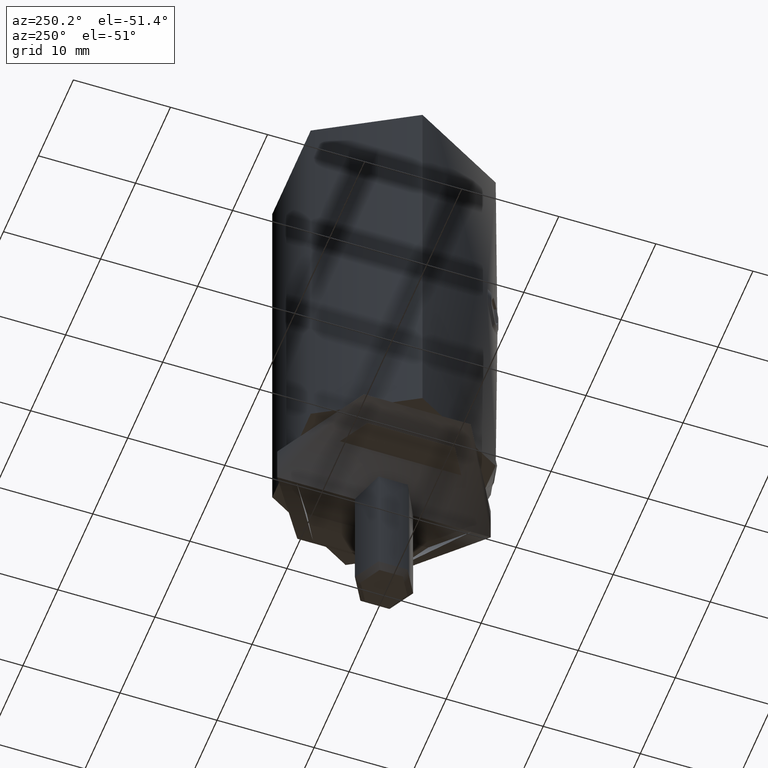
[diagram: clean part render]
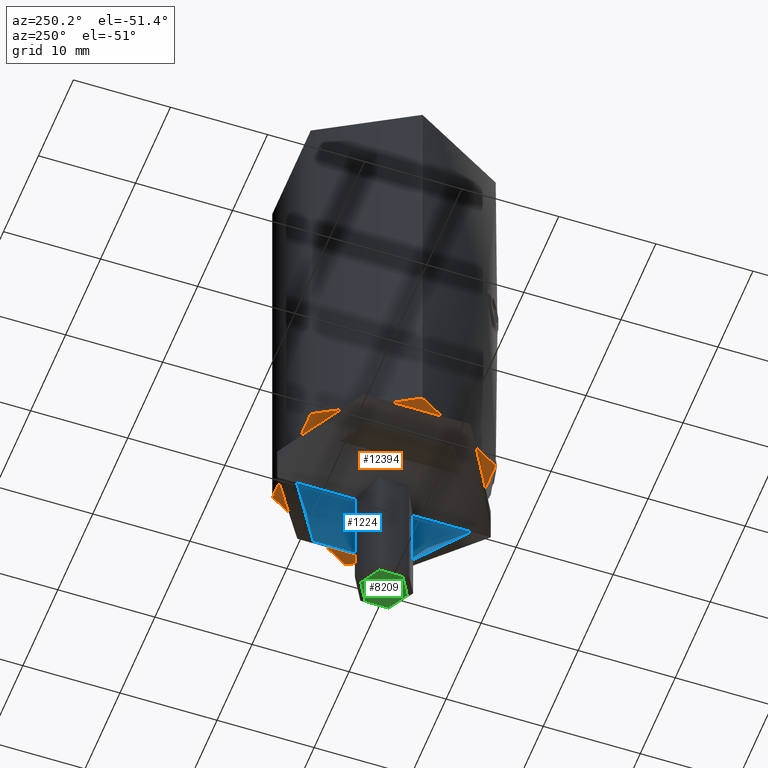
[diagram: same view with three faces highlighted in distinct colors, each labeled with its STEP entity id]
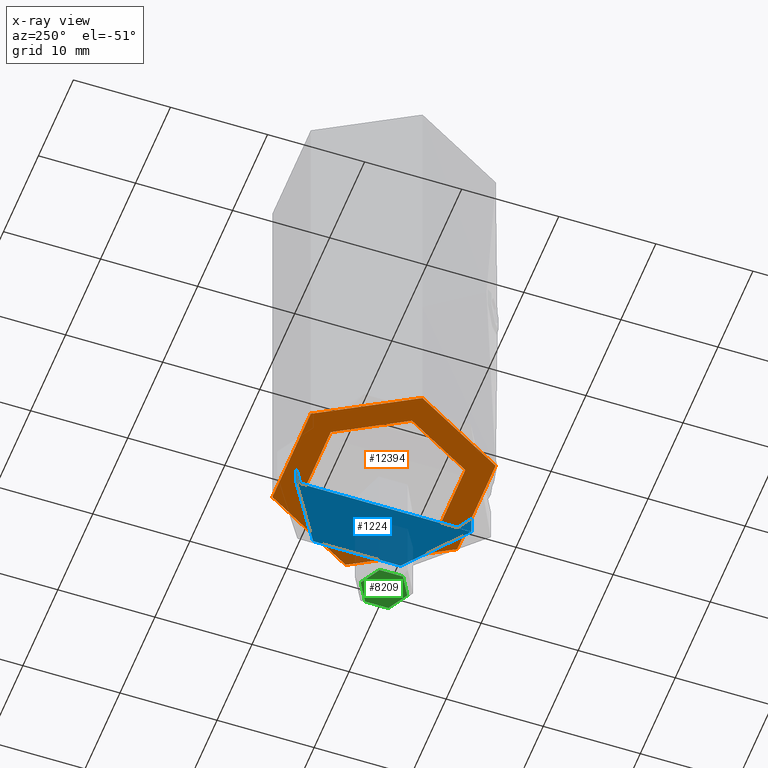
[diagram: x-ray of the same camera — body ghosted, the three highlighted faces saturated]
A machine part, auxiliary view with three faces highlighted in distinct colors.
The next image is the same camera in x-ray (body ghosted, the three faces saturated) — at least one of them is partly hidden behind the body in this view.
Their STEP definitions:

[orange] entity #12394 — the highlighted planar face has unit normal (0, 0, -1).
#185 = CARTESIAN_POINT ( 'NONE',  ( 0.000000000000000000, 0.000000000000000000, 0.000000000000000000 ) ) ;
#583 = AXIS2_PLACEMENT_3D ( 'NONE', #185, #18202, #8185 ) ;
#852 = CARTESIAN_POINT ( 'NONE',  ( 11.00000000000000000, 0.000000000000000000, 0.000000000000000000 ) ) ;
#1027 = EDGE_CURVE ( 'NONE', #9786, #12698, #20899, .T. ) ;
#1070 = DIRECTION ( 'NONE',  ( 0.000000000000000000, 0.000000000000000000, -1.000000000000000000 ) ) ;
#2545 = CARTESIAN_POINT ( 'NONE',  ( 0.000000000000000000, 0.000000000000000000, 0.000000000000000000 ) ) ;
#2551 = AXIS2_PLACEMENT_3D ( 'NONE', #2545, #16592, #11030 ) ;
#2902 = FACE_BOUND ( 'NONE', #18020, .T. ) ;
#3158 = FACE_OUTER_BOUND ( 'NONE', #12858, .T. ) ;
#3188 = VERTEX_POINT ( 'NONE', #10173 ) ;
#3858 = AXIS2_PLACEMENT_3D ( 'NONE', #18491, #1070, #13113 ) ;
#5896 = CARTESIAN_POINT ( 'NONE',  ( 0.000000000000000000, 0.000000000000000000, 0.000000000000000000 ) ) ;
#6557 = EDGE_CURVE ( 'NONE', #3188, #7494, #15906, .T. ) ;
#7494 = VERTEX_POINT ( 'NONE', #13508 ) ;
#7637 = DIRECTION ( 'NONE',  ( -0.000000000000000000, -0.000000000000000000, 1.000000000000000000 ) ) ;
#8185 = DIRECTION ( 'NONE',  ( 1.000000000000000000, 0.000000000000000000, 0.000000000000000000 ) ) ;
#9169 = ORIENTED_EDGE ( 'NONE', *, *, #6557, .T. ) ;
#9786 = VERTEX_POINT ( 'NONE', #852 ) ;
#9919 = ORIENTED_EDGE ( 'NONE', *, *, #12988, .T. ) ;
#10173 = CARTESIAN_POINT ( 'NONE',  ( 8.000000000000000000, 9.797174393178825657E-16, 0.000000000000000000 ) ) ;
#10232 = CIRCLE ( 'NONE', #2551, 11.00000000000000000 ) ;
#11030 = DIRECTION ( 'NONE',  ( 1.000000000000000000, 0.000000000000000000, 0.000000000000000000 ) ) ;
#11064 = CARTESIAN_POINT ( 'NONE',  ( 0.000000000000000000, 0.000000000000000000, 0.000000000000000000 ) ) ;
#11140 = DIRECTION ( 'NONE',  ( -0.000000000000000000, -0.000000000000000000, 1.000000000000000000 ) ) ;
#11363 = PLANE ( 'NONE',  #3858 ) ;
#12394 = ADVANCED_FACE ( 'NONE', ( #2902, #3158 ), #11363, .T. ) ;
#12698 = VERTEX_POINT ( 'NONE', #16909 ) ;
#12858 = EDGE_LOOP ( 'NONE', ( #16073, #21162 ) ) ;
#12988 = EDGE_CURVE ( 'NONE', #7494, #3188, #21945, .T. ) ;
#13113 = DIRECTION ( 'NONE',  ( -1.000000000000000000, 0.000000000000000000, -0.000000000000000000 ) ) ;
#13508 = CARTESIAN_POINT ( 'NONE',  ( -8.000000000000000000, 0.000000000000000000, 0.000000000000000000 ) ) ;
#13713 = AXIS2_PLACEMENT_3D ( 'NONE', #5896, #7637, #18160 ) ;
#14317 = AXIS2_PLACEMENT_3D ( 'NONE', #11064, #11140, #18351 ) ;
#14396 = EDGE_CURVE ( 'NONE', #12698, #9786, #10232, .T. ) ;
#15906 = CIRCLE ( 'NONE', #14317, 8.000000000000000000 ) ;
#16073 = ORIENTED_EDGE ( 'NONE', *, *, #1027, .F. ) ;
#16592 = DIRECTION ( 'NONE',  ( -0.000000000000000000, -0.000000000000000000, 1.000000000000000000 ) ) ;
#16909 = CARTESIAN_POINT ( 'NONE',  ( -10.99999999999999822, 1.347111479062088405E-15, 0.000000000000000000 ) ) ;
#18020 = EDGE_LOOP ( 'NONE', ( #9919, #9169 ) ) ;
#18160 = DIRECTION ( 'NONE',  ( -1.000000000000000000, 0.000000000000000000, 0.000000000000000000 ) ) ;
#18202 = DIRECTION ( 'NONE',  ( -0.000000000000000000, -0.000000000000000000, 1.000000000000000000 ) ) ;
#18351 = DIRECTION ( 'NONE',  ( -1.000000000000000000, 0.000000000000000000, 0.000000000000000000 ) ) ;
#18491 = CARTESIAN_POINT ( 'NONE',  ( 0.000000000000000000, 9.629649721936179265E-32, 0.000000000000000000 ) ) ;
#20899 = CIRCLE ( 'NONE', #583, 11.00000000000000000 ) ;
#21162 = ORIENTED_EDGE ( 'NONE', *, *, #14396, .F. ) ;
#21945 = CIRCLE ( 'NONE', #13713, 8.000000000000000000 ) ;

[blue] entity #1224 — the highlighted cylindrical surface (partial cylindrical patch) has radius 9 mm, axis along (0, 0, -1).
#340 = VERTEX_POINT ( 'NONE', #20653 ) ;
#727 = CARTESIAN_POINT ( 'NONE',  ( 1.102182119232617714E-15, -9.000000000000000000, 1.999999999999997113 ) ) ;
#780 = VECTOR ( 'NONE', #18650, 1000.000000000000000 ) ;
#1224 = ADVANCED_FACE ( 'NONE', ( #4260 ), #2926, .F. ) ;
#1652 = CARTESIAN_POINT ( 'NONE',  ( 5.945509795412032616, -6.762829383680998951, -0.8494344560948389189 ) ) ;
#1794 = CARTESIAN_POINT ( 'NONE',  ( 2.923398892352812695, 8.532671750191315851, -0.1951843288773500440 ) ) ;
#1867 = CARTESIAN_POINT ( 'NONE',  ( 9.000187751502096489, 0.5905009705526768071, -2.005297072345209042 ) ) ;
#2926 = CYLINDRICAL_SURFACE ( 'NONE', #18693, 9.000000000000000000 ) ;
#3242 = VERTEX_POINT ( 'NONE', #10552 ) ;
#3303 = CARTESIAN_POINT ( 'NONE',  ( 8.704730878304367536, -2.362008123287461903, -1.869084275814926643 ) ) ;
#3379 = CARTESIAN_POINT ( 'NONE',  ( 6.161153869097453217, 6.567007868193577735, -0.9138700709468956518 ) ) ;
#3451 = CARTESIAN_POINT ( 'NONE',  ( 8.532378343486360706, -2.922873668129471803, -1.791268359766140739 ) ) ;
#3512 = CARTESIAN_POINT ( 'NONE',  ( 1.491460967790994463, 8.880471131629562365, -0.05053315862707704470 ) ) ;
#3873 = EDGE_CURVE ( 'NONE', #340, #8956, #7770, .T. ) ;
#4055 = EDGE_CURVE ( 'NONE', #10605, #340, #19736, .T. ) ;
#4260 = FACE_OUTER_BOUND ( 'NONE', #10072, .T. ) ;
#4990 = CARTESIAN_POINT ( 'NONE',  ( 7.150489299978476154, -5.496221675087341829, -1.239282207627341981 ) ) ;
#5061 = CARTESIAN_POINT ( 'NONE',  ( 6.780744227032809768, 5.946691944771037797, -1.108980968700565395 ) ) ;
#5296 = CARTESIAN_POINT ( 'NONE',  ( 0.3009189647580838844, 9.000000000000003553, 6.939105662144041953E-15 ) ) ;
#6746 = CARTESIAN_POINT ( 'NONE',  ( 4.019336509877204477, 8.074508177015530919, -0.3770925065201941040 ) ) ;
#6817 = CARTESIAN_POINT ( 'NONE',  ( 4.528699389792132379, -7.783145565688806222, -0.4876673288471303769 ) ) ;
#6898 = CARTESIAN_POINT ( 'NONE',  ( 5.495492606631186661, -7.133337858995711045, -0.7233263029714135373 ) ) ;
#6978 = CARTESIAN_POINT ( 'NONE',  ( 7.636236501007309663, -4.772041448204880965, -1.422289563636395027 ) ) ;
#7033 = LINE ( 'NONE', #20226, #780 ) ;
#7047 = CARTESIAN_POINT ( 'NONE',  ( 8.532837768163393122, 2.921585112813853247, -1.791469826741916238 ) ) ;
#7770 = LINE ( 'NONE', #727, #14347 ) ;
#8479 = CARTESIAN_POINT ( 'NONE',  ( 8.066124459004573310, -4.003048471266071218, -1.593871881070151098 ) ) ;
#8520 = DIRECTION ( 'NONE',  ( 0.000000000000000000, 1.000000000000000000, 1.445602896647339163E-16 ) ) ;
#8557 = CARTESIAN_POINT ( 'NONE',  ( 0.6030836316957842724, 8.984747230574685162, -0.006488074780198420551 ) ) ;
#8709 = CARTESIAN_POINT ( 'NONE',  ( 4.535962555106800131, 7.795054722870341735, -0.4849895838474957976 ) ) ;
#8788 = CARTESIAN_POINT ( 'NONE',  ( 8.193363873119134055, -3.735633294600278820, -1.646896040208383427 ) ) ;
#8956 = VERTEX_POINT ( 'NONE', #19728 ) ;
#9915 = EDGE_CURVE ( 'NONE', #10605, #3242, #7033, .T. ) ;
#10072 = EDGE_LOOP ( 'NONE', ( #14459, #19280, #20928, #12326 ) ) ;
#10416 = CARTESIAN_POINT ( 'NONE',  ( 1.102158473109589528E-15, -9.000000000000000000, -1.861935857233098374E-15 ) ) ;
#10491 = CARTESIAN_POINT ( 'NONE',  ( 7.798681730541693113, 4.529955176446842202, -1.483482858883815370 ) ) ;
#10552 = CARTESIAN_POINT ( 'NONE',  ( -2.400543471972580931E-16, 9.000000000000000000, 0.000000000000000000 ) ) ;
#10563 = CARTESIAN_POINT ( 'NONE',  ( 7.787120209274806193, -4.521893375319822717, -1.481395017640133149 ) ) ;
#10605 = VERTEX_POINT ( 'NONE', #15515 ) ;
#12031 = CARTESIAN_POINT ( 'NONE',  ( 6.163233675632003639, -6.565061745348238276, -0.9145015165310408367 ) ) ;
#12085 = DIRECTION ( 'NONE',  ( 0.000000000000000000, 1.000000000000000000, 1.445602896647339163E-16 ) ) ;
#12109 = CARTESIAN_POINT ( 'NONE',  ( 1.486471490104403825, -8.881374637244256576, -0.05015444881014049366 ) ) ;
#12188 = CARTESIAN_POINT ( 'NONE',  ( 8.706415660134123158, 2.357563003050728856, -1.869838397457706858 ) ) ;
#12257 = CARTESIAN_POINT ( 'NONE',  ( 5.259692949055500222, 7.308904753116186370, -0.6613222603714047354 ) ) ;
#12326 = ORIENTED_EDGE ( 'NONE', *, *, #12732, .F. ) ;
#12330 = CARTESIAN_POINT ( 'NONE',  ( 0.5933654931180778469, -8.985391735092926879, -0.006214453234868509181 ) ) ;
#12732 = EDGE_CURVE ( 'NONE', #8956, #3242, #19237, .T. ) ;
#12923 = DIRECTION ( 'NONE',  ( -0.000000000000000000, 1.224646799147353700E-16, -1.000000000000000000 ) ) ;
#13800 = CARTESIAN_POINT ( 'NONE',  ( 6.782893369670293993, -5.944265957912704401, -1.109705084575135059 ) ) ;
#13876 = CARTESIAN_POINT ( 'NONE',  ( 5.262191614882391733, -7.307129957256241148, -0.6619565563388757345 ) ) ;
#13949 = CARTESIAN_POINT ( 'NONE',  ( 3.742138319472860353, -8.190460172740545275, -0.3310585601990093663 ) ) ;
#14029 = CARTESIAN_POINT ( 'NONE',  ( 0.2964334490521093879, -9.000000000000000000, -3.047059855589466335E-15 ) ) ;
#14347 = VECTOR ( 'NONE', #12923, 1000.000000000000000 ) ;
#14459 = ORIENTED_EDGE ( 'NONE', *, *, #3873, .F. ) ;
#15515 = CARTESIAN_POINT ( 'NONE',  ( 0.000000000000000000, 9.000000000000000000, 1.999999999999999556 ) ) ;
#15523 = CARTESIAN_POINT ( 'NONE',  ( 8.999905445151094696, -0.2995324990175534663, -2.005164705339575804 ) ) ;
#15601 = CARTESIAN_POINT ( 'NONE',  ( 5.492841792478553309, 7.135380700782325114, -0.7226140274287836673 ) ) ;
#15681 = CARTESIAN_POINT ( 'NONE',  ( 8.985179175337009383, -0.5968560665887953087, -1.998238770381804086 ) ) ;
#15751 = CARTESIAN_POINT ( 'NONE',  ( 7.149034228485851017, 5.498294302312308979, -1.238742662092881197 ) ) ;
#17271 = CARTESIAN_POINT ( 'NONE',  ( 8.942269996938883025, 1.181348493133572708, -1.977808956071740232 ) ) ;
#17347 = CARTESIAN_POINT ( 'NONE',  ( 1.188250110291134698, -8.926220304075664913, -0.03123314677761045502 ) ) ;
#17427 = CARTESIAN_POINT ( 'NONE',  ( 2.924552147243136169, -8.532053850704444997, -0.1954229079065455954 ) ) ;
#17491 = CARTESIAN_POINT ( 'NONE',  ( -2.400543471972580931E-16, 9.000000000000000000, 0.000000000000000000 ) ) ;
#17563 = CARTESIAN_POINT ( 'NONE',  ( 4.778794297280152925, -7.632033403245351622, -0.5441288213318646871 ) ) ;
#17816 = DIRECTION ( 'NONE',  ( -0.000000000000000000, 1.224646799147353700E-16, -1.000000000000000000 ) ) ;
#18650 = DIRECTION ( 'NONE',  ( -0.000000000000000000, 1.224646799147353700E-16, -1.000000000000000000 ) ) ;
#18693 = AXIS2_PLACEMENT_3D ( 'NONE', #21209, #17816, #12085 ) ;
#18936 = CARTESIAN_POINT ( 'NONE',  ( 2.360921398637982005, -8.705153755182525543, -0.1237501564019045236 ) ) ;
#18969 = DIRECTION ( 'NONE',  ( -0.000000000000000000, 1.224646799147353700E-16, -1.000000000000000000 ) ) ;
#19007 = CARTESIAN_POINT ( 'NONE',  ( 2.359948464335839269, 8.705144260624257058, -0.1237513485727981116 ) ) ;
#19079 = CARTESIAN_POINT ( 'NONE',  ( 5.943050040245521082, 6.764992603206122723, -0.8487149436210510434 ) ) ;
#19153 = CARTESIAN_POINT ( 'NONE',  ( 8.080748568436822765, 4.005806101512836115, -1.598932007725411664 ) ) ;
#19226 = CARTESIAN_POINT ( 'NONE',  ( 1.198054577579932278, 8.924912206474560961, -0.03178508186405704788 ) ) ;
#19237 = B_SPLINE_CURVE_WITH_KNOTS ( 'NONE', 3,
 ( #10416, #14029, #12330, #17347, #12109, #18936, #17427, #13949, #20820, #6817, #17563, #13876, #6898, #1652, #12031, #13800, #4990, #6978, #10563, #8479, #8788, #3451, #3303, #20664, #20743, #15681, #15523, #1867, #17271, #12188, #7047, #19153, #10491, #15751, #5061, #3379, #19079, #15601, #12257, #8709, #6746, #1794, #19007, #3512, #19226, #8557, #5296, #17491 ),
 .UNSPECIFIED., .F., .F.,
 ( 4, 2, 2, 2, 2, 2, 2, 2, 2, 2, 2, 2, 2, 2, 2, 2, 2, 2, 2, 2, 2, 2, 2, 4 ),
 ( 0.02848027258681561091, 0.02936949791033579421, 0.03025872323385598098, 0.03203717388089635104, 0.03292639920441653434, 0.03381562452793671764, 0.03470484985145690787, 0.03559407517497709117, 0.03737252582201745776, 0.03826175114553764800, 0.03915097646905783824, 0.04092942711609820483, 0.04181865243961838813, 0.04270787776313857143, 0.04448632841017894496, 0.04626477905721931155, 0.04804322970425968509, 0.04982168035130005168, 0.05071090567482024192, 0.05160013099834042521, 0.05337858164538079875, 0.05515703229242116534, 0.05604625761594135558, 0.05693548293946153888 ),
 .UNSPECIFIED. ) ;
#19280 = ORIENTED_EDGE ( 'NONE', *, *, #4055, .F. ) ;
#19728 = CARTESIAN_POINT ( 'NONE',  ( 1.102158473109589528E-15, -9.000000000000000000, -1.861935857233098374E-15 ) ) ;
#19736 = CIRCLE ( 'NONE', #21593, 9.000000000000000000 ) ;
#20226 = CARTESIAN_POINT ( 'NONE',  ( 0.000000000000000000, 9.000000000000000000, 1.999999999999999556 ) ) ;
#20558 = CARTESIAN_POINT ( 'NONE',  ( 0.000000000000000000, -2.449293598294701484E-16, 1.999999999999998224 ) ) ;
#20653 = CARTESIAN_POINT ( 'NONE',  ( 1.102182119232617714E-15, -9.000000000000000000, 1.999999999999997113 ) ) ;
#20664 = CARTESIAN_POINT ( 'NONE',  ( 8.880688484592262455, -1.490378324176697911, -1.949609545792502896 ) ) ;
#20743 = CARTESIAN_POINT ( 'NONE',  ( 8.925628558626204523, -1.192827234166816464, -1.970485342432204634 ) ) ;
#20820 = CARTESIAN_POINT ( 'NONE',  ( 4.010974858901454887, -8.062168054628070735, -0.3812122465098694568 ) ) ;
#20928 = ORIENTED_EDGE ( 'NONE', *, *, #9915, .T. ) ;
#21209 = CARTESIAN_POINT ( 'NONE',  ( 0.000000000000000000, -2.449293598294700991E-16, 1.999999999999998224 ) ) ;
#21593 = AXIS2_PLACEMENT_3D ( 'NONE', #20558, #18969, #8520 ) ;

[green] entity #8209 — the highlighted planar face has unit normal (-0, 0, -1).
#1537 = CARTESIAN_POINT ( 'NONE',  ( 3.306546357697840914E-16, -2.399999999999987921, 25.00000000000000355 ) ) ;
#1732 = EDGE_CURVE ( 'NONE', #17435, #15311, #8617, .T. ) ;
#2105 = CIRCLE ( 'NONE', #22380, 2.399999999999985256 ) ;
#2226 = DIRECTION ( 'NONE',  ( 0.000000000000000000, -1.000000000000000000, 0.000000000000000000 ) ) ;
#2421 = CARTESIAN_POINT ( 'NONE',  ( 0.000000000000000000, -3.061616997868383437E-15, 25.00000000000000355 ) ) ;
#2786 = FACE_OUTER_BOUND ( 'NONE', #12236, .T. ) ;
#3907 = AXIS2_PLACEMENT_3D ( 'NONE', #18312, #6285, #13165 ) ;
#4306 = ORIENTED_EDGE ( 'NONE', *, *, #1732, .T. ) ;
#4468 = DIRECTION ( 'NONE',  ( 0.000000000000000000, -1.224646799147353207E-16, 1.000000000000000000 ) ) ;
#6248 = DIRECTION ( 'NONE',  ( 0.000000000000000000, -1.000000000000000000, -1.224646799147353207E-16 ) ) ;
#6285 = DIRECTION ( 'NONE',  ( 0.000000000000000000, -1.224646799147353207E-16, 1.000000000000000000 ) ) ;
#6771 = CARTESIAN_POINT ( 'NONE',  ( 0.000000000000000000, 2.399999999999982148, 25.00000000000000355 ) ) ;
#8209 = ADVANCED_FACE ( 'NONE', ( #2786 ), #12891, .T. ) ;
#8617 = CIRCLE ( 'NONE', #3907, 2.399999999999985256 ) ;
#9160 = DIRECTION ( 'NONE',  ( 0.000000000000000000, -1.224646799147353207E-16, 1.000000000000000000 ) ) ;
#9844 = AXIS2_PLACEMENT_3D ( 'NONE', #2421, #4468, #6248 ) ;
#10940 = EDGE_CURVE ( 'NONE', #15311, #17435, #2105, .T. ) ;
#11771 = ORIENTED_EDGE ( 'NONE', *, *, #10940, .T. ) ;
#12236 = EDGE_LOOP ( 'NONE', ( #4306, #11771 ) ) ;
#12891 = PLANE ( 'NONE',  #9844 ) ;
#13165 = DIRECTION ( 'NONE',  ( 0.000000000000000000, -1.000000000000000000, 0.000000000000000000 ) ) ;
#15311 = VERTEX_POINT ( 'NONE', #1537 ) ;
#17435 = VERTEX_POINT ( 'NONE', #6771 ) ;
#18312 = CARTESIAN_POINT ( 'NONE',  ( 0.000000000000000000, -3.061616997868383437E-15, 25.00000000000000355 ) ) ;
#19582 = CARTESIAN_POINT ( 'NONE',  ( 0.000000000000000000, -3.061616997868383437E-15, 25.00000000000000355 ) ) ;
#22380 = AXIS2_PLACEMENT_3D ( 'NONE', #19582, #9160, #2226 ) ;